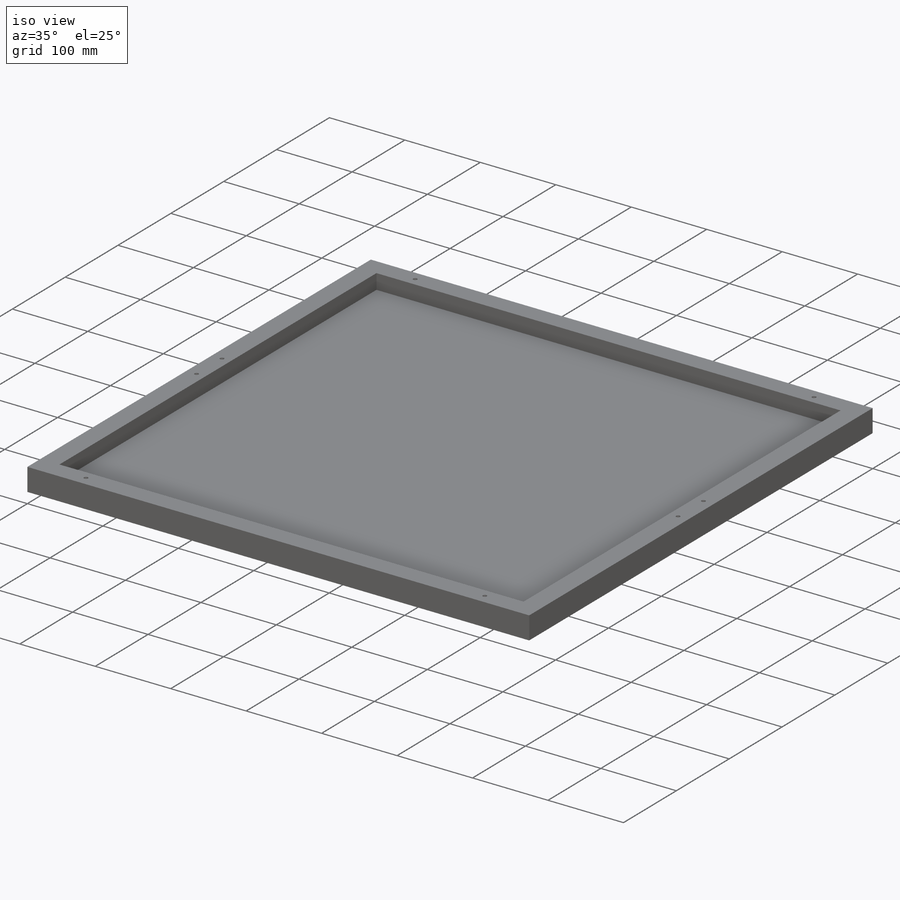
[diagram: iso view]
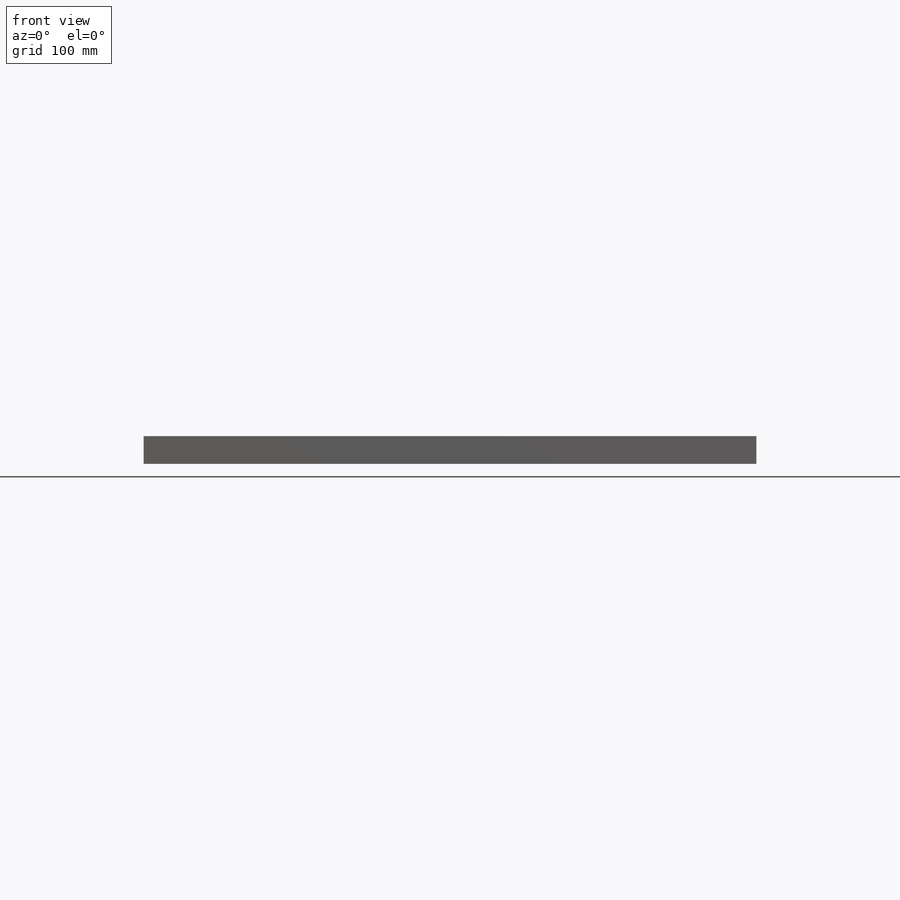
[diagram: front view]
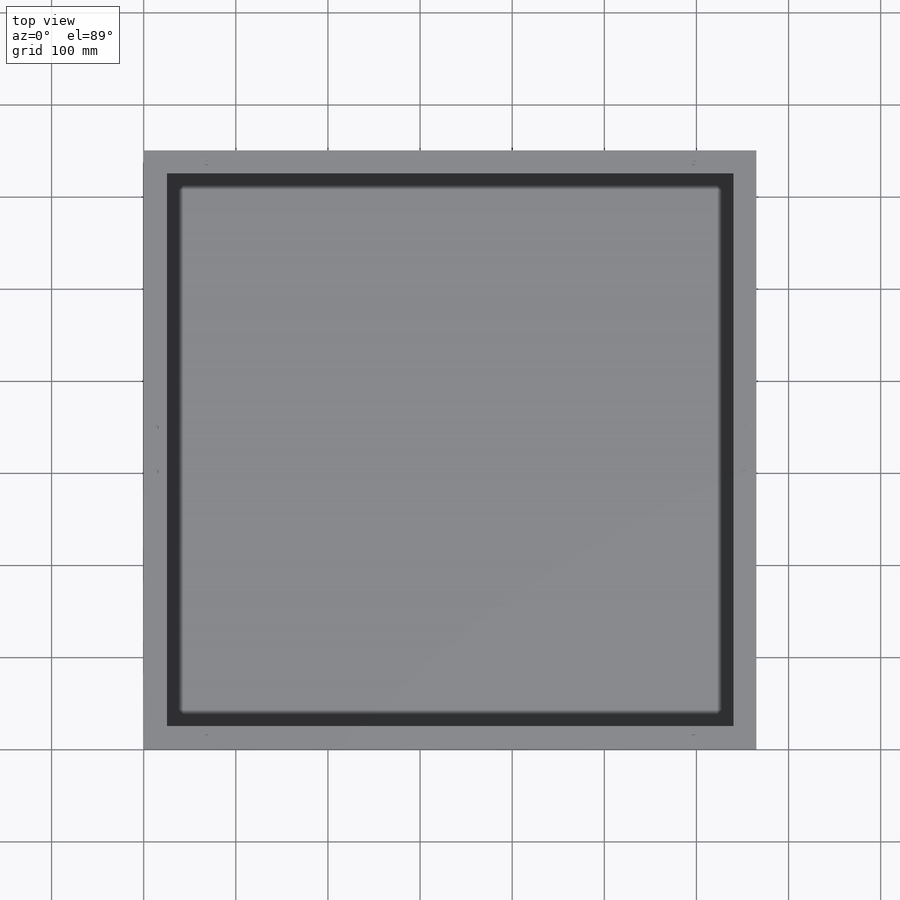
[diagram: top view]
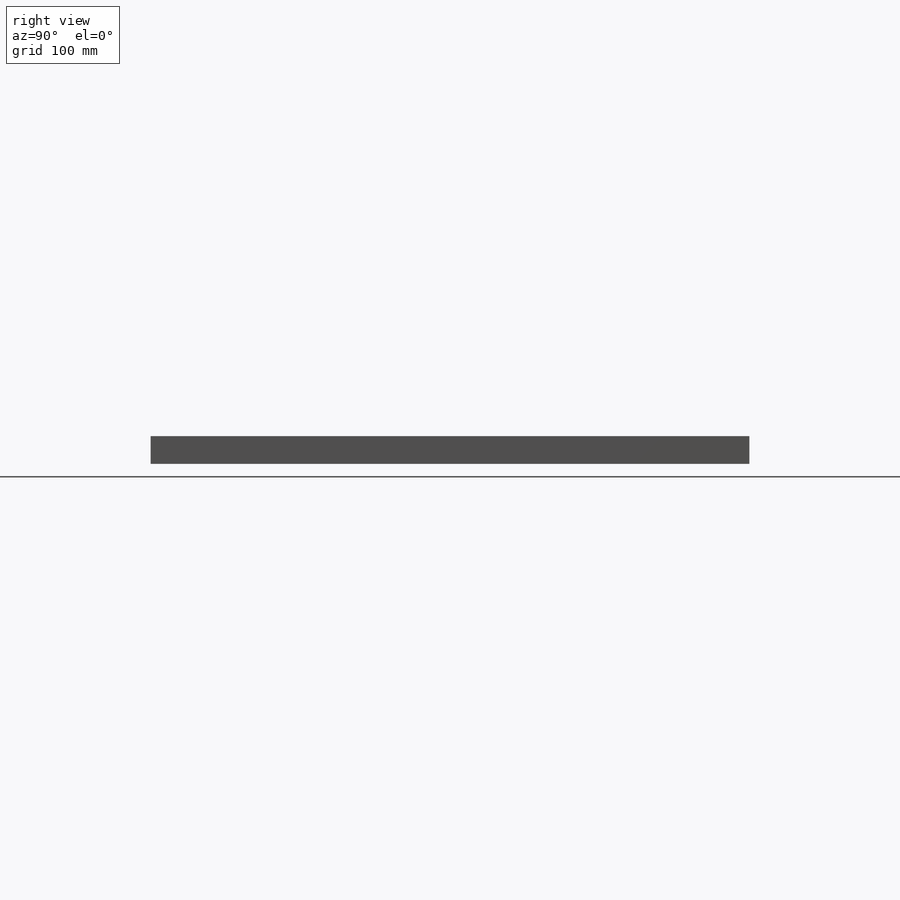
[diagram: right view]
SOLIDWORKS PART (.sldprt)
format: sldprt  version: not decoded by parser v0  size: 230,400 bytes
history: native  units: mm
features: sketch x4, material x1, extrude x1, hole x1, cut_extrude x1 (+12 scaffold rows collapsed)
feature tree (20):
  scaffold x12  (default folders/planes/origin — collapsed)
  material  "Material <not specified>"
  sketch  "Sketch1"  dims[D1=665.0mm D2=650.0mm]
  extrude  "Boss-Extrude1"  Depth=30mm
  hole  "#8 (0.199) Diameter Hole1"  Diameter=5.0546mm Depth=9.65mm
  sketch  "Sketch3"  dims[D1=13.5mm D2=13.5mm D3=48.0mm D4=301.0mm D5=13.5mm D6=68.25mm]
  sketch  "Sketch2"  dims[hole-wizard template sketch: 47 standard entries collapsed; hole parameters kept: c15.Hole Depth=9.65mm c15.D3=~14.816244mm c15.Drill Angle=180.0deg]
  sketch  "Sketch4"  dims[D1=25.0mm D2=25.0mm D3=25.0mm D4=25.0mm]
  cut_extrude  "Cut-Extrude1"  Depth=20mm
decode coverage: 7 of 7 modeling features carry decoded parameters
note: ~ marks probable driven/reference dimensions
note: suppression state not decoded; provenance and decode notes live in map.json
